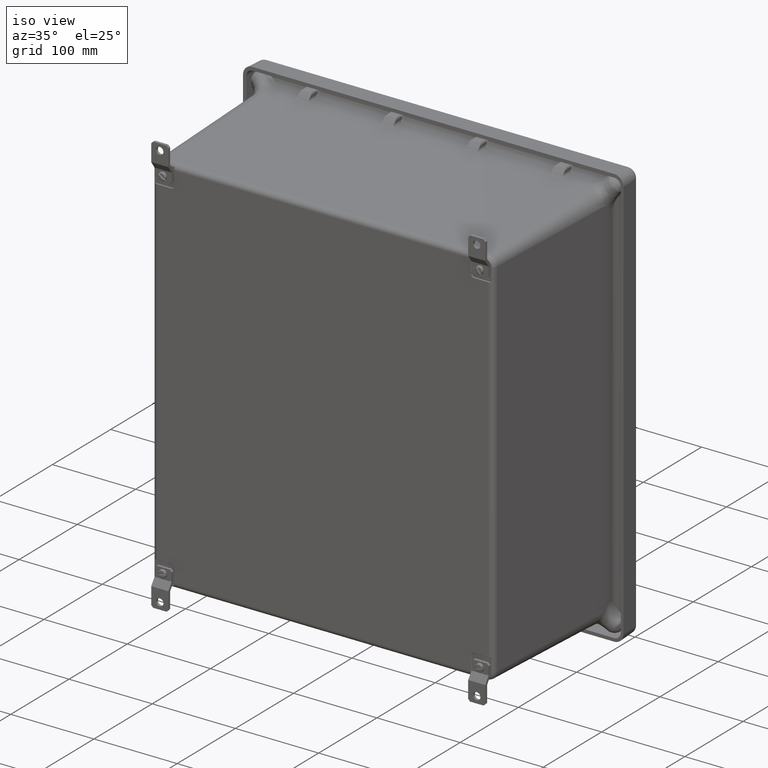
[diagram: clean part render]
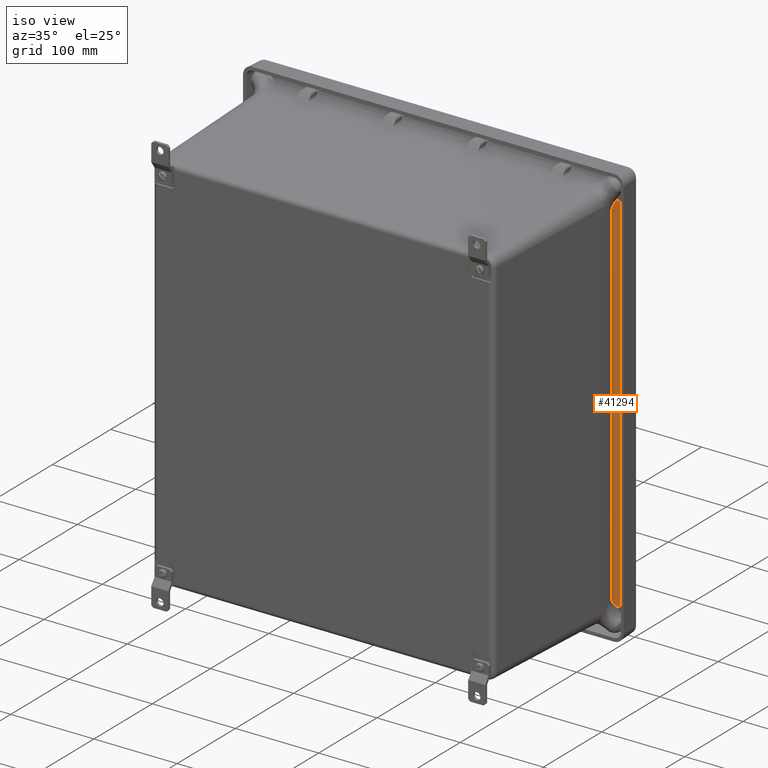
[diagram: same view with one face highlighted and labeled with its STEP entity id]
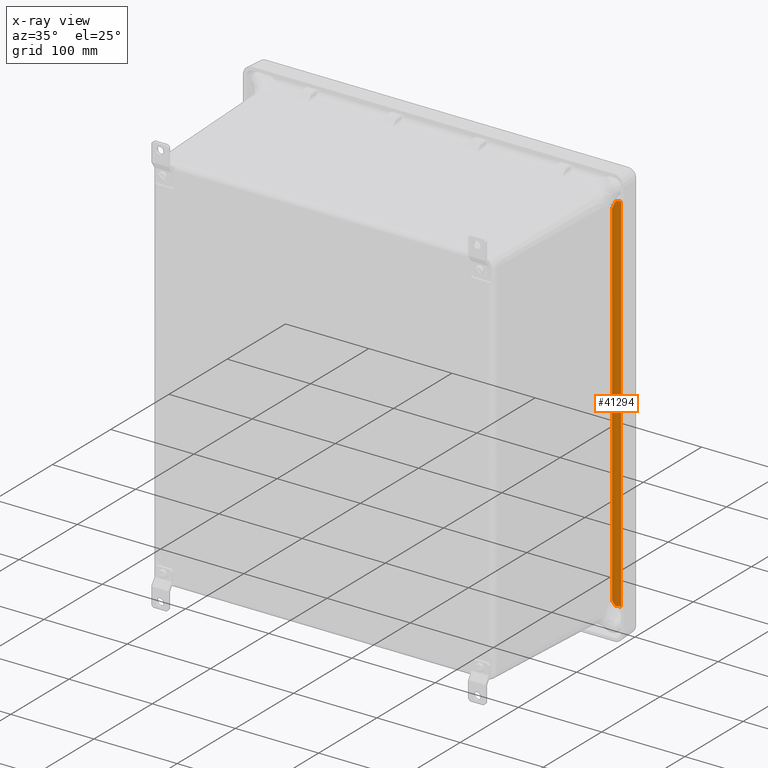
[diagram: x-ray of the same camera — body ghosted, the highlighted face saturated]
A machine part, iso view. The second image highlights one B-rep face of the part: STEP entity #41294.
The next image is the same camera in x-ray: the body ghosted, the highlighted face saturated — about 0% of this face is hidden behind the body in this view.
In plain terms, the highlighted cylindrical surface (edge-blend (fillet) strip) has radius 6.3589 mm, axis along (-0, 0, -1).
Its self-contained STEP definition (entity closure, byte-faithful):
#123 = CARTESIAN_POINT ( 'NONE',  ( 8.343209664245163600, -0.4281316320756410900, -8.477418024283855000 ) ) ;
#235 = EDGE_LOOP ( 'NONE', ( #4134, #12356, #4416, #712, #36876, #37194 ) ) ;
#373 = EDGE_CURVE ( 'NONE', #28251, #20834, #44925, .T. ) ;
#712 = ORIENTED_EDGE ( 'NONE', *, *, #13944, .T. ) ;
#932 = CARTESIAN_POINT ( 'NONE',  ( 8.585229654125049200, -0.2434280937881650700, -9.372141932689249400 ) ) ;
#1515 = CARTESIAN_POINT ( 'NONE',  ( 8.335032160580819700, -0.4850410047886938900, 8.665074867310753600 ) ) ;
#2503 = DIRECTION ( 'NONE',  ( 0.0000000000000000000, 0.0000000000000000000, -1.000000000000000000 ) ) ;
#2715 = CARTESIAN_POINT ( 'NONE',  ( 8.335156304689794700, -0.4814859826405014100, 8.387586214251467000 ) ) ;
#3851 = CARTESIAN_POINT ( 'NONE',  ( 8.363528255882062700, -0.3739296577238783700, -8.571878907963085900 ) ) ;
#4134 = ORIENTED_EDGE ( 'NONE', *, *, #16891, .F. ) ;
#4416 = ORIENTED_EDGE ( 'NONE', *, *, #373, .F. ) ;
#5890 = EDGE_CURVE ( 'NONE', #31377, #46349, #30138, .T. ) ;
#6526 = VECTOR ( 'NONE', #34935, 39.37007874015748100 ) ;
#7537 = CARTESIAN_POINT ( 'NONE',  ( 8.399767466518318000, -0.3256147818912913900, -8.665153532689254600 ) ) ;
#8782 = VERTEX_POINT ( 'NONE', #18464 ) ;
#9966 = CARTESIAN_POINT ( 'NONE',  ( 8.399767466518316200, -0.3256147818912938400, 8.665074867310753600 ) ) ;
#10149 = CARTESIAN_POINT ( 'NONE',  ( 8.335032160580819700, -0.4850410047886938900, 8.381658566386006400 ) ) ;
#11074 = CARTESIAN_POINT ( 'NONE',  ( 8.585229654125049200, -0.2434280937881650700, -8.665153532689254600 ) ) ;
#12356 = ORIENTED_EDGE ( 'NONE', *, *, #28857, .T. ) ;
#13273 = B_SPLINE_CURVE_WITH_KNOTS ( 'NONE', 3,
 ( #37110, #22327, #44595, #123, #26070, #3851, #29809, #7537 ),
 .UNSPECIFIED., .F., .F.,
 ( 4, 2, 2, 4 ),
 ( -3.096732728137475500E-005, 0.002096915134385188300, 0.004224797596051751100, 0.008480562519384822100 ),
 .UNSPECIFIED. ) ;
#13611 = CARTESIAN_POINT ( 'NONE',  ( 8.399767466518318000, -0.3256147818912913900, -8.665153532689254600 ) ) ;
#13680 = CARTESIAN_POINT ( 'NONE',  ( 8.347388058630967200, -0.4143015472008651500, 8.501043155478404500 ) ) ;
#13944 = EDGE_CURVE ( 'NONE', #28251, #31377, #13273, .T. ) ;
#15290 = DIRECTION ( 'NONE',  ( 0.0000000000000000000, 0.0000000000000000000, -1.000000000000000000 ) ) ;
#15777 = FACE_OUTER_BOUND ( 'NONE', #235, .T. ) ;
#16891 = EDGE_CURVE ( 'NONE', #27966, #8782, #25538, .T. ) ;
#17444 = CARTESIAN_POINT ( 'NONE',  ( 8.338755603003202000, -0.4493070791563057400, 8.441492538075031900 ) ) ;
#18268 = DIRECTION ( 'NONE',  ( -6.314221642584680500E-017, 0.0000000000000000000, -1.000000000000000000 ) ) ;
#18464 = CARTESIAN_POINT ( 'NONE',  ( 8.585229654125049200, -0.2434280937881650700, 8.665074867310753600 ) ) ;
#18589 = DIRECTION ( 'NONE',  ( -1.000000000000000000, 0.0000000000000000000, 0.0000000000000000000 ) ) ;
#18861 = VECTOR ( 'NONE', #19392, 39.37007874015748100 ) ;
#19392 = DIRECTION ( 'NONE',  ( -6.314221642584680500E-017, 0.0000000000000000000, -1.000000000000000000 ) ) ;
#20834 = VERTEX_POINT ( 'NONE', #10149 ) ;
#21135 = EDGE_CURVE ( 'NONE', #8782, #46349, #29947, .T. ) ;
#21174 = CARTESIAN_POINT ( 'NONE',  ( 8.336276307868214300, -0.4671269452985971600, 8.411577831816195800 ) ) ;
#22327 = CARTESIAN_POINT ( 'NONE',  ( 8.335533633647136400, -0.4706806950470569500, -8.405681628135473800 ) ) ;
#24722 = CARTESIAN_POINT ( 'NONE',  ( 8.585229654125049200, -0.4937780937881650600, -8.665153532689254600 ) ) ;
#24921 = CARTESIAN_POINT ( 'NONE',  ( 8.335359795401961600, -0.4778693542132916900, 8.393621064062280400 ) ) ;
#25538 = CIRCLE ( 'NONE', #31324, 0.2503500000000002400 ) ;
#25844 = CARTESIAN_POINT ( 'NONE',  ( 8.399767466518316200, -0.3256147818912938400, 8.665074867310753600 ) ) ;
#26070 = CARTESIAN_POINT ( 'NONE',  ( 8.347389241230178700, -0.4142981008875348800, -8.501127783564285800 ) ) ;
#27966 = VERTEX_POINT ( 'NONE', #25844 ) ;
#28251 = VERTEX_POINT ( 'NONE', #42919 ) ;
#28446 = DIRECTION ( 'NONE',  ( -1.000000000000000000, 0.0000000000000000000, 0.0000000000000000000 ) ) ;
#28666 = CARTESIAN_POINT ( 'NONE',  ( 8.335032160580819700, -0.4850410047886938900, 8.381658566386006400 ) ) ;
#28857 = EDGE_CURVE ( 'NONE', #27966, #20834, #32531, .T. ) ;
#29809 = CARTESIAN_POINT ( 'NONE',  ( 8.379034067266180900, -0.3484810155450585000, -8.618531819739445200 ) ) ;
#29947 = LINE ( 'NONE', #932, #18861 ) ;
#30132 = AXIS2_PLACEMENT_3D ( 'NONE', #24722, #2503, #28446 ) ;
#30138 = CIRCLE ( 'NONE', #30132, 0.2503500000000002400 ) ;
#31324 = AXIS2_PLACEMENT_3D ( 'NONE', #37546, #15290, #41278 ) ;
#31377 = VERTEX_POINT ( 'NONE', #13611 ) ;
#32246 = CARTESIAN_POINT ( 'NONE',  ( 8.379033320686017900, -0.3484818389255481300, 8.618451475579499600 ) ) ;
#32531 = B_SPLINE_CURVE_WITH_KNOTS ( 'NONE', 3,
 ( #9966, #32246, #35965, #13680, #39722, #17444, #43478, #21174, #47207, #24921, #2715, #28666 ),
 .UNSPECIFIED., .F., .F.,
 ( 4, 2, 2, 2, 2, 4 ),
 ( 0.0000000000000000000, 0.004214209533729259600, 0.006321314300593888900, 0.007374866684026238300, 0.007901642875742447700, 0.008428419067458656200 ),
 .UNSPECIFIED. ) ;
#34379 = CYLINDRICAL_SURFACE ( 'NONE', #38898, 0.2503500000000002400 ) ;
#34935 = DIRECTION ( 'NONE',  ( 6.314221642584680500E-017, -0.0000000000000000000, 1.000000000000000000 ) ) ;
#35965 = CARTESIAN_POINT ( 'NONE',  ( 8.363527134279150800, -0.3739314867755692600, 8.571796882110462000 ) ) ;
#36876 = ORIENTED_EDGE ( 'NONE', *, *, #5890, .T. ) ;
#37110 = CARTESIAN_POINT ( 'NONE',  ( 8.335032160580818000, -0.4850410047886938900, -8.381737231764500300 ) ) ;
#37136 = CARTESIAN_POINT ( 'NONE',  ( 8.585229654125049200, -0.4937780937881650600, -9.372141932689249400 ) ) ;
#37194 = ORIENTED_EDGE ( 'NONE', *, *, #21135, .F. ) ;
#37546 = CARTESIAN_POINT ( 'NONE',  ( 8.585229654125049200, -0.4937780937881650600, 8.665074867310753600 ) ) ;
#38898 = AXIS2_PLACEMENT_3D ( 'NONE', #37136, #18268, #18589 ) ;
#39722 = CARTESIAN_POINT ( 'NONE',  ( 8.343208546686568600, -0.4281356370283631000, 8.477332515794895300 ) ) ;
#41278 = DIRECTION ( 'NONE',  ( -1.000000000000000000, 0.0000000000000000000, 0.0000000000000000000 ) ) ;
#41294 = ADVANCED_FACE ( 'NONE', ( #15777 ), #34379, .F. ) ;
#42919 = CARTESIAN_POINT ( 'NONE',  ( 8.335032160580818000, -0.4850410047886938900, -8.381737231764500300 ) ) ;
#43478 = CARTESIAN_POINT ( 'NONE',  ( 8.337578496780013300, -0.4564184085804229900, 8.429527444339223400 ) ) ;
#44595 = CARTESIAN_POINT ( 'NONE',  ( 8.337272095029108600, -0.4563590835925789300, -8.429633187090946200 ) ) ;
#44925 = LINE ( 'NONE', #1515, #6526 ) ;
#46349 = VERTEX_POINT ( 'NONE', #11074 ) ;
#47207 = CARTESIAN_POINT ( 'NONE',  ( 8.335919311673688300, -0.4707045713015091100, 8.405592305797393100 ) ) ;